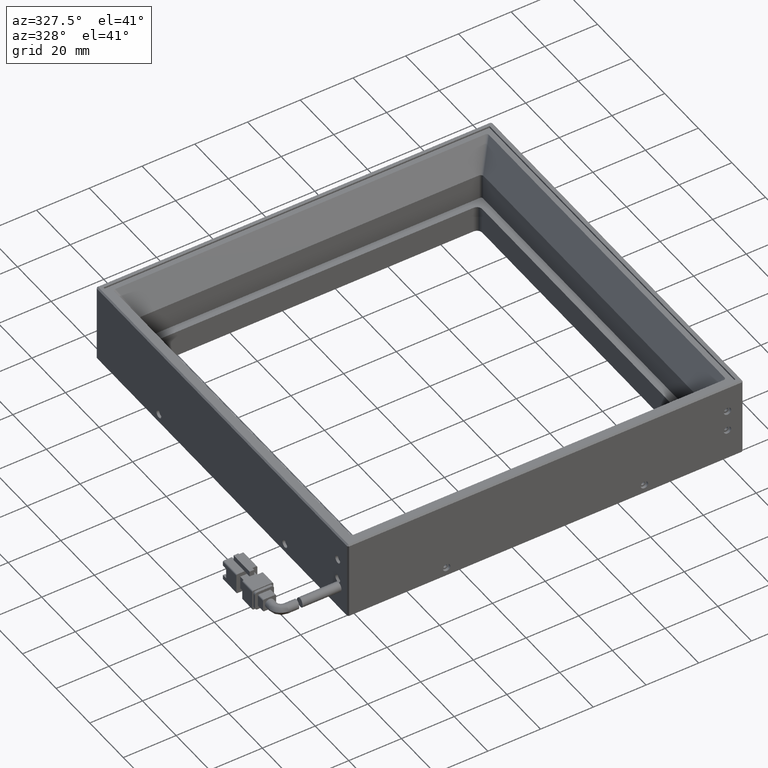
[diagram: clean part render]
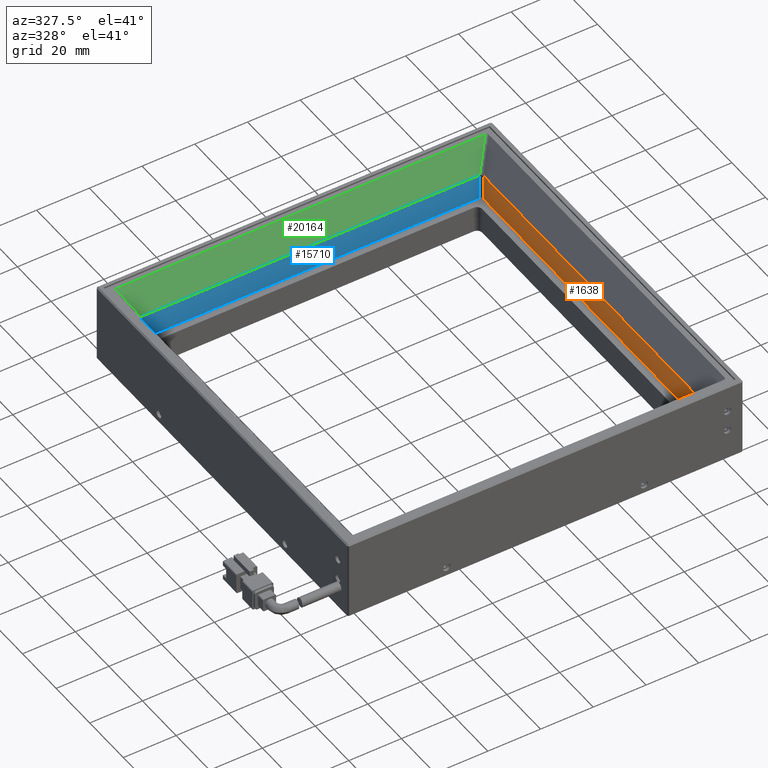
[diagram: same view with three faces highlighted in distinct colors, each labeled with its STEP entity id]
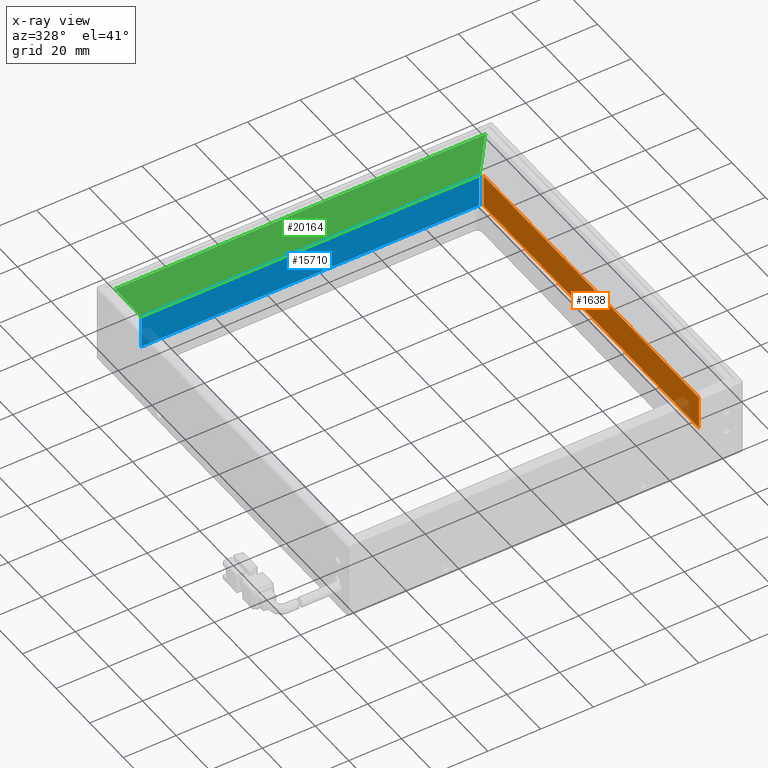
[diagram: x-ray of the same camera — body ghosted, the three highlighted faces saturated]
A machine part, auxiliary view with three faces highlighted in distinct colors.
The next image is the same camera in x-ray (body ghosted, the three faces saturated) — at least one of them is partly hidden behind the body in this view.
Their STEP definitions:

[orange] entity #1638 — the highlighted planar face has unit normal (-1, -0, -0).
#163 = VERTEX_POINT ( 'NONE', #11988 ) ;
#1162 = EDGE_CURVE ( 'NONE', #9429, #6772, #5082, .T. ) ;
#1638 = ADVANCED_FACE ( 'NONE', ( #10056 ), #6178, .T. ) ;
#2856 = VECTOR ( 'NONE', #12181, 1000.000000000000000 ) ;
#3670 = LINE ( 'NONE', #7491, #7376 ) ;
#4291 = ORIENTED_EDGE ( 'NONE', *, *, #8958, .F. ) ;
#4400 = CARTESIAN_POINT ( 'NONE',  ( 55.26824938067706200, 81.74938067712635400, 14.58090023534363200 ) ) ;
#4579 = CARTESIAN_POINT ( 'NONE',  ( 55.26824938067707600, 75.84938067712634800, 1.800000000000058400 ) ) ;
#4996 = EDGE_CURVE ( 'NONE', #14693, #163, #3670, .T. ) ;
#5082 = LINE ( 'NONE', #6000, #9252 ) ;
#5327 = CARTESIAN_POINT ( 'NONE',  ( 55.26824938067707600, -53.35061932287364100, 14.58090023534353600 ) ) ;
#5477 = AXIS2_PLACEMENT_3D ( 'NONE', #4579, #6103, #7764 ) ;
#6000 = CARTESIAN_POINT ( 'NONE',  ( 55.26824938067707600, -53.35061932287362700, 1.799999999999975200 ) ) ;
#6076 = CARTESIAN_POINT ( 'NONE',  ( 55.26824938067707600, 75.84938067712634800, 1.800000000000058400 ) ) ;
#6103 = DIRECTION ( 'NONE',  ( -1.000000000000000000, -7.978533672646619300E-017, -6.938351866337134200E-019 ) ) ;
#6178 = PLANE ( 'NONE',  #5477 ) ;
#6772 = VERTEX_POINT ( 'NONE', #5327 ) ;
#7376 = VECTOR ( 'NONE', #12221, 1000.000000000000000 ) ;
#7491 = CARTESIAN_POINT ( 'NONE',  ( 55.26824938067707600, 74.84938067712634800, 1.800000000000058400 ) ) ;
#7691 = CARTESIAN_POINT ( 'NONE',  ( 55.26824938067707600, 74.84938067712633400, 14.58090023534363400 ) ) ;
#7738 = DIRECTION ( 'NONE',  ( 7.978533672646619300E-017, -1.000000000000000000, -6.487865800153258500E-016 ) ) ;
#7764 = DIRECTION ( 'NONE',  ( -6.938351866336616100E-019, -6.487865800153258500E-016, 1.000000000000000000 ) ) ;
#8541 = VECTOR ( 'NONE', #7738, 1000.000000000000000 ) ;
#8958 = EDGE_CURVE ( 'NONE', #14693, #6772, #9267, .T. ) ;
#9252 = VECTOR ( 'NONE', #15425, 1000.000000000000000 ) ;
#9267 = LINE ( 'NONE', #4400, #2856 ) ;
#9429 = VERTEX_POINT ( 'NONE', #19920 ) ;
#10056 = FACE_OUTER_BOUND ( 'NONE', #19745, .T. ) ;
#10338 = ORIENTED_EDGE ( 'NONE', *, *, #13685, .T. ) ;
#11988 = CARTESIAN_POINT ( 'NONE',  ( 55.26824938067707600, 74.84938067712634800, 1.800000000000058400 ) ) ;
#12181 = DIRECTION ( 'NONE',  ( 1.530835117677396900E-016, -1.000000000000000000, -6.911053011065134600E-016 ) ) ;
#12221 = DIRECTION ( 'NONE',  ( 6.938351866336616100E-019, 6.487865800153258500E-016, -1.000000000000000000 ) ) ;
#13685 = EDGE_CURVE ( 'NONE', #163, #9429, #17425, .T. ) ;
#14108 = ORIENTED_EDGE ( 'NONE', *, *, #4996, .T. ) ;
#14693 = VERTEX_POINT ( 'NONE', #7691 ) ;
#15393 = ORIENTED_EDGE ( 'NONE', *, *, #1162, .T. ) ;
#15425 = DIRECTION ( 'NONE',  ( -6.938351866336616100E-019, -6.487865800153258500E-016, 1.000000000000000000 ) ) ;
#17425 = LINE ( 'NONE', #6076, #8541 ) ;
#19745 = EDGE_LOOP ( 'NONE', ( #10338, #15393, #4291, #14108 ) ) ;
#19920 = CARTESIAN_POINT ( 'NONE',  ( 55.26824938067707600, -53.35061932287362700, 1.799999999999975200 ) ) ;

[blue] entity #15710 — the highlighted planar face has unit normal (0, -1, -0).
#73 = VECTOR ( 'NONE', #16198, 1000.000000000000000 ) ;
#326 = VERTEX_POINT ( 'NONE', #11956 ) ;
#1069 = CARTESIAN_POINT ( 'NONE',  ( 54.26824938067707600, 75.84938067712634800, 1.800000000000058400 ) ) ;
#1179 = CARTESIAN_POINT ( 'NONE',  ( -73.93175061932289800, 75.84938067712634800, 1.800000000000058400 ) ) ;
#1592 = CARTESIAN_POINT ( 'NONE',  ( 54.26824938067707600, 75.84938067712633400, 14.58090023534358600 ) ) ;
#2127 = VECTOR ( 'NONE', #18365, 1000.000000000000000 ) ;
#3105 = CARTESIAN_POINT ( 'NONE',  ( 55.26824938067707600, 75.84938067712634800, 1.800000000000058400 ) ) ;
#3551 = CARTESIAN_POINT ( 'NONE',  ( -80.83175061932293200, 75.84938067712633400, 14.58090023534360400 ) ) ;
#3841 = ORIENTED_EDGE ( 'NONE', *, *, #11497, .T. ) ;
#4231 = LINE ( 'NONE', #3551, #73 ) ;
#5906 = ORIENTED_EDGE ( 'NONE', *, *, #19885, .T. ) ;
#5912 = EDGE_CURVE ( 'NONE', #14324, #326, #18589, .T. ) ;
#6547 = VECTOR ( 'NONE', #12166, 1000.000000000000000 ) ;
#6740 = EDGE_CURVE ( 'NONE', #14324, #7196, #4231, .T. ) ;
#6839 = AXIS2_PLACEMENT_3D ( 'NONE', #10020, #17990, #8563 ) ;
#6980 = PLANE ( 'NONE',  #6839 ) ;
#7196 = VERTEX_POINT ( 'NONE', #1592 ) ;
#8563 = DIRECTION ( 'NONE',  ( -1.000000000000000000, -7.978533672646619300E-017, -6.938351866337134200E-019 ) ) ;
#10020 = CARTESIAN_POINT ( 'NONE',  ( 55.26824938067707600, 75.84938067712634800, 1.800000000000058400 ) ) ;
#11497 = EDGE_CURVE ( 'NONE', #16356, #7196, #14663, .T. ) ;
#11838 = FACE_OUTER_BOUND ( 'NONE', #13332, .T. ) ;
#11956 = CARTESIAN_POINT ( 'NONE',  ( -73.93175061932289800, 75.84938067712634800, 1.800000000000058400 ) ) ;
#12166 = DIRECTION ( 'NONE',  ( 6.938351866336616100E-019, 6.487865800153258500E-016, -1.000000000000000000 ) ) ;
#13332 = EDGE_LOOP ( 'NONE', ( #5906, #3841, #14264, #16302 ) ) ;
#14264 = ORIENTED_EDGE ( 'NONE', *, *, #6740, .F. ) ;
#14324 = VERTEX_POINT ( 'NONE', #19386 ) ;
#14663 = LINE ( 'NONE', #16788, #2127 ) ;
#15681 = DIRECTION ( 'NONE',  ( 1.000000000000000000, 7.978533672646619300E-017, 6.938351866337134200E-019 ) ) ;
#15710 = ADVANCED_FACE ( 'NONE', ( #11838 ), #6980, .T. ) ;
#16198 = DIRECTION ( 'NONE',  ( 1.000000000000000000, 1.530835117677400400E-016, -4.162488590455364400E-017 ) ) ;
#16302 = ORIENTED_EDGE ( 'NONE', *, *, #5912, .T. ) ;
#16356 = VERTEX_POINT ( 'NONE', #1069 ) ;
#16788 = CARTESIAN_POINT ( 'NONE',  ( 54.26824938067707600, 75.84938067712634800, 1.800000000000058400 ) ) ;
#17990 = DIRECTION ( 'NONE',  ( 7.978533672646619300E-017, -1.000000000000000000, -6.487865800153258500E-016 ) ) ;
#18365 = DIRECTION ( 'NONE',  ( -6.938351866336616100E-019, -6.487865800153258500E-016, 1.000000000000000000 ) ) ;
#18589 = LINE ( 'NONE', #1179, #6547 ) ;
#19386 = CARTESIAN_POINT ( 'NONE',  ( -73.93175061932289800, 75.84938067712633400, 14.58090023534360000 ) ) ;
#19699 = LINE ( 'NONE', #3105, #20176 ) ;
#19885 = EDGE_CURVE ( 'NONE', #326, #16356, #19699, .T. ) ;
#20176 = VECTOR ( 'NONE', #15681, 1000.000000000000000 ) ;

[green] entity #20164 — the highlighted planar face has unit normal (0, -0.866, 0.5).
#73 = VECTOR ( 'NONE', #16198, 1000.000000000000000 ) ;
#94 = LINE ( 'NONE', #13945, #19995 ) ;
#812 = CARTESIAN_POINT ( 'NONE',  ( 54.26824938067707600, 75.84938067712633400, 14.58090023534358600 ) ) ;
#1592 = CARTESIAN_POINT ( 'NONE',  ( 54.26824938067707600, 75.84938067712633400, 14.58090023534358600 ) ) ;
#1712 = EDGE_CURVE ( 'NONE', #9181, #4951, #5371, .T. ) ;
#1929 = EDGE_CURVE ( 'NONE', #4951, #6715, #20093, .T. ) ;
#2343 = DIRECTION ( 'NONE',  ( 4.049354726089711800E-017, -0.4999999999999963900, -0.8660254037844407100 ) ) ;
#3551 = CARTESIAN_POINT ( 'NONE',  ( -80.83175061932293200, 75.84938067712633400, 14.58090023534360400 ) ) ;
#3823 = PLANE ( 'NONE',  #8879 ) ;
#4223 = ORIENTED_EDGE ( 'NONE', *, *, #1929, .T. ) ;
#4231 = LINE ( 'NONE', #3551, #73 ) ;
#4398 = CARTESIAN_POINT ( 'NONE',  ( -74.01594938293540300, 75.84672037178064800, 14.57629245132118900 ) ) ;
#4951 = VERTEX_POINT ( 'NONE', #15187 ) ;
#5229 = CARTESIAN_POINT ( 'NONE',  ( 63.16824938067708200, 81.74938067712633900, 24.80000000000006100 ) ) ;
#5371 = LINE ( 'NONE', #18824, #9580 ) ;
#6051 = ORIENTED_EDGE ( 'NONE', *, *, #6351, .T. ) ;
#6244 = DIRECTION ( 'NONE',  ( 0.4472135954999572600, 0.4472135954999547600, 0.7745966692414856200 ) ) ;
#6351 = EDGE_CURVE ( 'NONE', #7196, #9181, #7426, .T. ) ;
#6516 = EDGE_CURVE ( 'NONE', #6715, #14066, #94, .T. ) ;
#6550 = CARTESIAN_POINT ( 'NONE',  ( 54.39425367315979500, 75.84141037339352900, 14.56709526432658900 ) ) ;
#6657 = FACE_OUTER_BOUND ( 'NONE', #18336, .T. ) ;
#6715 = VERTEX_POINT ( 'NONE', #19300 ) ;
#6740 = EDGE_CURVE ( 'NONE', #14324, #7196, #4231, .T. ) ;
#6795 =( BOUNDED_CURVE ( )  B_SPLINE_CURVE ( 3, ( #7590, #4398, #12243, #18574 ),
 .UNSPECIFIED., .F., .F. ) 
 B_SPLINE_CURVE_WITH_KNOTS ( ( 4, 4 ),
 ( 3.015252526018736400, 3.141592653589793100 ),
 .UNSPECIFIED. ) 
 CURVE ( )  GEOMETRIC_REPRESENTATION_ITEM ( )  RATIONAL_B_SPLINE_CURVE ( ( 1.000000000000000000, 0.9986702899479104100, 0.9986702899479104100, 1.000000000000000000 ) ) 
 REPRESENTATION_ITEM ( '' )  );
#6814 = DIRECTION ( 'NONE',  ( -1.000000000000000000, -7.978533672646619300E-017, -6.938351866337134200E-019 ) ) ;
#7196 = VERTEX_POINT ( 'NONE', #1592 ) ;
#7426 =( BOUNDED_CURVE ( )  B_SPLINE_CURVE ( 3, ( #812, #19648, #8648, #11821 ),
 .UNSPECIFIED., .F., .F. ) 
 B_SPLINE_CURVE_WITH_KNOTS ( ( 4, 4 ),
 ( 3.141592653589793100, 3.267932781160821000 ),
 .UNSPECIFIED. ) 
 CURVE ( )  GEOMETRIC_REPRESENTATION_ITEM ( )  RATIONAL_B_SPLINE_CURVE ( ( 1.000000000000000000, 0.9986702899479109600, 0.9986702899479109600, 1.000000000000000000 ) ) 
 REPRESENTATION_ITEM ( '' )  );
#7590 = CARTESIAN_POINT ( 'NONE',  ( -74.05775491180564500, 75.84141037339350100, 14.56709526432657100 ) ) ;
#8648 = CARTESIAN_POINT ( 'NONE',  ( 54.35244814428954600, 75.84672037178064800, 14.57629245132116900 ) ) ;
#8879 = AXIS2_PLACEMENT_3D ( 'NONE', #10167, #11759, #2343 ) ;
#9181 = VERTEX_POINT ( 'NONE', #6550 ) ;
#9580 = VECTOR ( 'NONE', #6244, 1000.000000000000000 ) ;
#9918 = ORIENTED_EDGE ( 'NONE', *, *, #10031, .T. ) ;
#10031 = EDGE_CURVE ( 'NONE', #14066, #14324, #6795, .T. ) ;
#10065 = ORIENTED_EDGE ( 'NONE', *, *, #6516, .T. ) ;
#10167 = CARTESIAN_POINT ( 'NONE',  ( -80.83175061932293200, 81.74938067712633900, 24.80000000000006100 ) ) ;
#10924 = DIRECTION ( 'NONE',  ( 0.4472135954999549900, -0.4472135954999554300, -0.7745966692414866200 ) ) ;
#11759 = DIRECTION ( 'NONE',  ( 1.533866530436739400E-016, -0.8660254037844407100, 0.4999999999999963900 ) ) ;
#11821 = CARTESIAN_POINT ( 'NONE',  ( 54.39425367315979500, 75.84141037339352900, 14.56709526432658900 ) ) ;
#11974 = CARTESIAN_POINT ( 'NONE',  ( -74.05775491180564500, 75.84141037339350100, 14.56709526432657100 ) ) ;
#12243 = CARTESIAN_POINT ( 'NONE',  ( -73.97389202802023100, 75.84938067712636200, 14.58090023534359900 ) ) ;
#13945 = CARTESIAN_POINT ( 'NONE',  ( -79.96572521553848400, 81.74938067712633900, 24.80000000000006100 ) ) ;
#14066 = VERTEX_POINT ( 'NONE', #11974 ) ;
#14324 = VERTEX_POINT ( 'NONE', #19386 ) ;
#15187 = CARTESIAN_POINT ( 'NONE',  ( 60.30222397689265500, 81.74938067712635400, 24.80000000000006100 ) ) ;
#15359 = ORIENTED_EDGE ( 'NONE', *, *, #1712, .T. ) ;
#15936 = VECTOR ( 'NONE', #6814, 1000.000000000000000 ) ;
#16198 = DIRECTION ( 'NONE',  ( 1.000000000000000000, 1.530835117677400400E-016, -4.162488590455364400E-017 ) ) ;
#18336 = EDGE_LOOP ( 'NONE', ( #6051, #15359, #4223, #10065, #9918, #18646 ) ) ;
#18574 = CARTESIAN_POINT ( 'NONE',  ( -73.93175061932289800, 75.84938067712633400, 14.58090023534360000 ) ) ;
#18646 = ORIENTED_EDGE ( 'NONE', *, *, #6740, .T. ) ;
#18824 = CARTESIAN_POINT ( 'NONE',  ( 54.39425367315978100, 75.84141037339352900, 14.56709526432657900 ) ) ;
#19300 = CARTESIAN_POINT ( 'NONE',  ( -79.96572521553848400, 81.74938067712632500, 24.80000000000006100 ) ) ;
#19386 = CARTESIAN_POINT ( 'NONE',  ( -73.93175061932289800, 75.84938067712633400, 14.58090023534360000 ) ) ;
#19648 = CARTESIAN_POINT ( 'NONE',  ( 54.31039078937438100, 75.84938067712634800, 14.58090023534357500 ) ) ;
#19995 = VECTOR ( 'NONE', #10924, 999.9999999999998900 ) ;
#20093 = LINE ( 'NONE', #5229, #15936 ) ;
#20164 = ADVANCED_FACE ( 'NONE', ( #6657 ), #3823, .T. ) ;